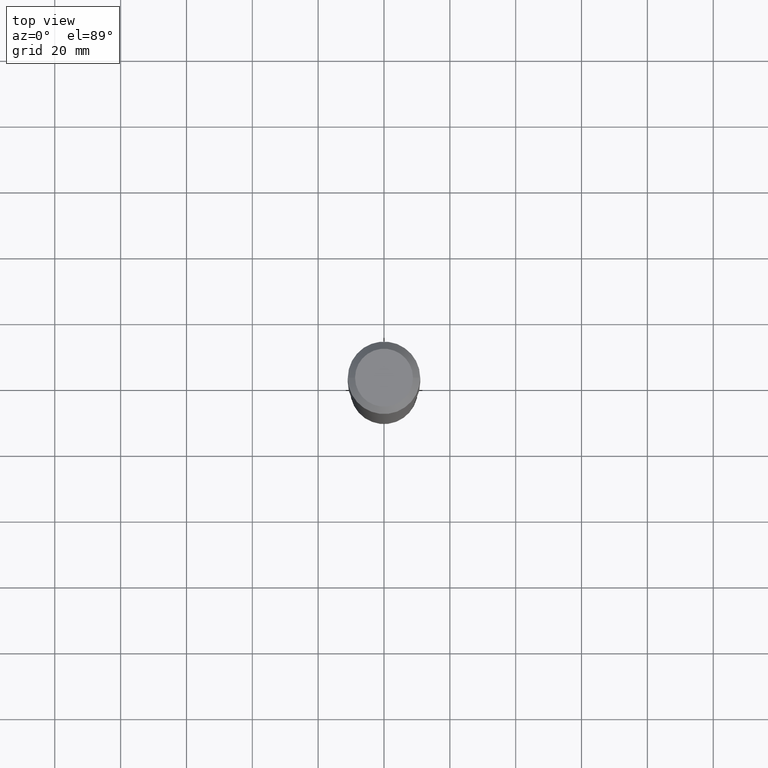
[diagram: clean part render]
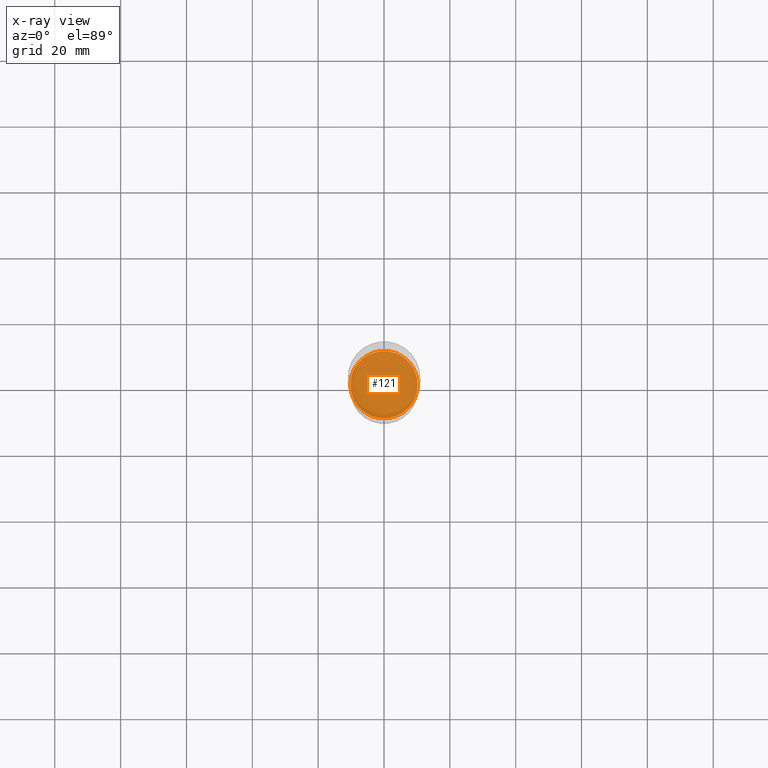
[diagram: x-ray — body ghosted, one internal face saturated and labeled with its STEP entity id]
A machine part, top view, then the same camera in x-ray: the body is ghosted and one INTERNAL B-rep face — a face not visible from any outside direction — is saturated and labeled: STEP entity #121.
In plain terms, the highlighted planar face has unit normal (-0, 0, 1).
Its self-contained STEP definition (entity closure, byte-faithful):
#92 = DIRECTION ( 'NONE',  ( 1.000000000000000000, -6.982962677686265922E-15, 4.876176775795935793E-29 ) ) ;
#93 = CARTESIAN_POINT ( 'NONE',  ( 0.4030500000000000194, -1.982637678262079306E-14, -4.872400000000000730 ) ) ;
#94 = DIRECTION ( 'NONE',  ( 1.000000000000000000, -6.982962677686265133E-15, 0.000000000000000000 ) ) ;
#121 = ADVANCED_FACE ( 'NONE', ( #411 ), #303, .F. ) ;
#147 = EDGE_CURVE ( 'NONE', #487, #352, #449, .T. ) ;
#184 = DIRECTION ( 'NONE',  ( 1.000000000000000000, -6.982962677686265133E-15, 0.000000000000000000 ) ) ;
#188 = DIRECTION ( 'NONE',  ( -2.445468806185136597E-29, 3.491481338843145583E-15, 1.000000000000000000 ) ) ;
#227 = AXIS2_PLACEMENT_3D ( 'NONE', #382, #371, #184 ) ;
#241 = EDGE_CURVE ( 'NONE', #352, #487, #400, .T. ) ;
#252 = AXIS2_PLACEMENT_3D ( 'NONE', #496, #506, #92 ) ;
#265 = CARTESIAN_POINT ( 'NONE',  ( -0.4030500000000000194, -1.414540195172414968E-14, -4.872400000000000730 ) ) ;
#303 = PLANE ( 'NONE',  #252 ) ;
#352 = VERTEX_POINT ( 'NONE', #93 ) ;
#371 = DIRECTION ( 'NONE',  ( -2.445468806185136597E-29, 3.491481338843145583E-15, 1.000000000000000000 ) ) ;
#382 = CARTESIAN_POINT ( 'NONE',  ( 1.191530221125646148E-28, -1.701189367537934324E-14, -4.872400000000000730 ) ) ;
#399 = ORIENTED_EDGE ( 'NONE', *, *, #147, .F. ) ;
#400 = CIRCLE ( 'NONE', #469, 0.4030500000000000194 ) ;
#403 = EDGE_LOOP ( 'NONE', ( #433, #399 ) ) ;
#411 = FACE_OUTER_BOUND ( 'NONE', #403, .T. ) ;
#433 = ORIENTED_EDGE ( 'NONE', *, *, #241, .F. ) ;
#449 = CIRCLE ( 'NONE', #227, 0.4030500000000000194 ) ;
#456 = CARTESIAN_POINT ( 'NONE',  ( 1.191530221125646148E-28, -1.701189367537934324E-14, -4.872400000000000730 ) ) ;
#469 = AXIS2_PLACEMENT_3D ( 'NONE', #456, #188, #94 ) ;
#487 = VERTEX_POINT ( 'NONE', #265 ) ;
#496 = CARTESIAN_POINT ( 'NONE',  ( 1.191530221125646148E-28, -1.701189367537934324E-14, -4.872400000000000730 ) ) ;
#506 = DIRECTION ( 'NONE',  ( -2.438088387897960049E-29, 3.491481338843145188E-15, 1.000000000000000000 ) ) ;